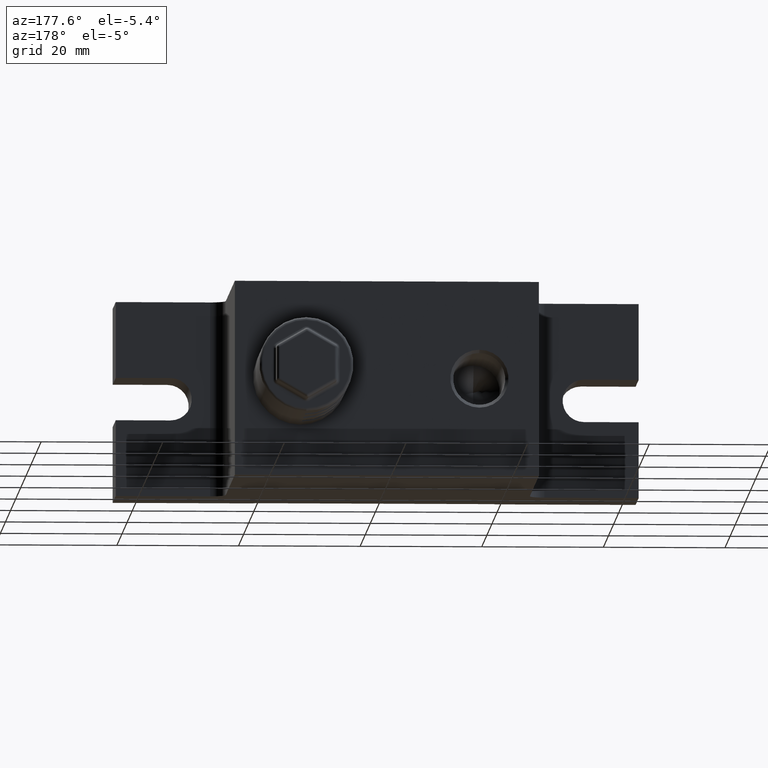
[diagram: clean part render]
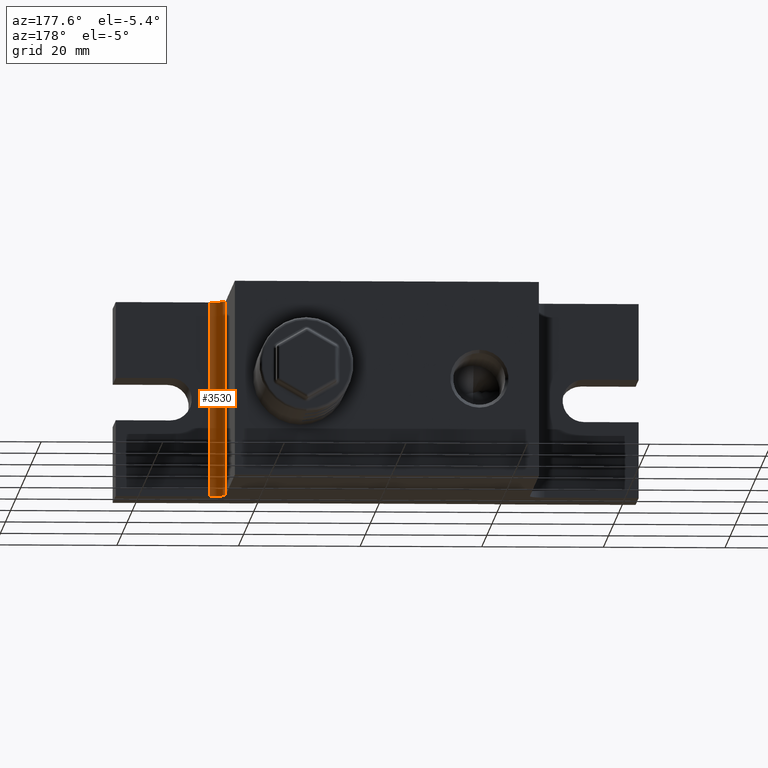
[diagram: same view with one face highlighted and labeled with its STEP entity id]
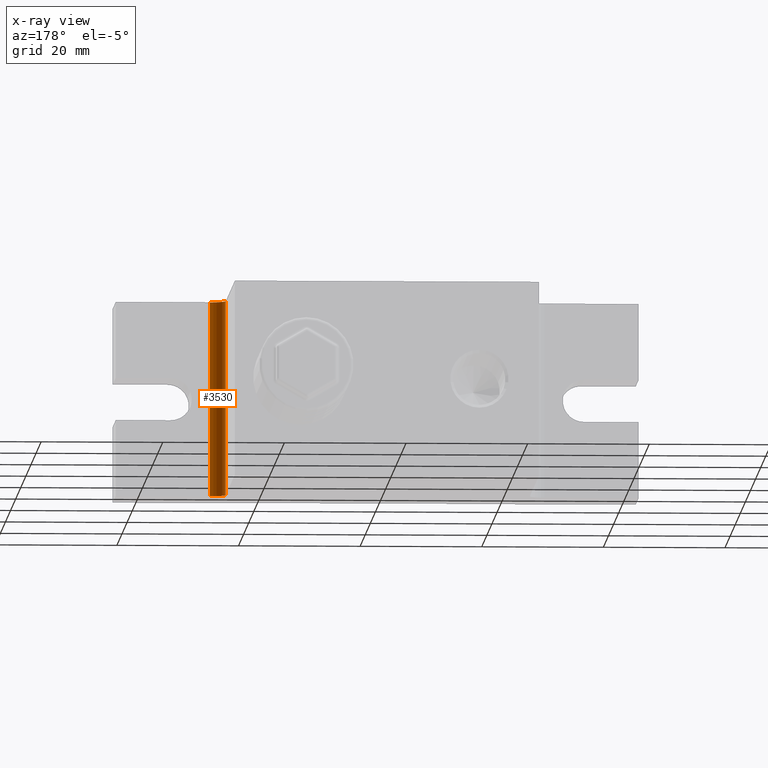
[diagram: x-ray of the same camera — body ghosted, the highlighted face saturated]
A machine part, auxiliary view. The second image highlights one B-rep face of the part: STEP entity #3530.
The next image is the same camera in x-ray: the body ghosted, the highlighted face saturated — about 0% of this face is hidden behind the body in this view.
In plain terms, the highlighted cylindrical surface (edge-blend (fillet) strip) has radius 2.5 mm, axis along (0, 0, -1).
Its self-contained STEP definition (entity closure, byte-faithful):
#348 = DIRECTION ( 'NONE',  ( -1.000000000000000000, 0.0000000000000000000, 0.0000000000000000000 ) ) ;
#484 = VERTEX_POINT ( 'NONE', #9081 ) ;
#831 = EDGE_CURVE ( 'NONE', #484, #8754, #4754, .T. ) ;
#861 = AXIS2_PLACEMENT_3D ( 'NONE', #9087, #5394, #5297 ) ;
#1019 = AXIS2_PLACEMENT_3D ( 'NONE', #8607, #7095, #348 ) ;
#1839 = ORIENTED_EDGE ( 'NONE', *, *, #6442, .F. ) ;
#2628 = CYLINDRICAL_SURFACE ( 'NONE', #8801, 2.499999999999998700 ) ;
#3023 = VECTOR ( 'NONE', #3173, 1000.000000000000000 ) ;
#3173 = DIRECTION ( 'NONE',  ( -0.0000000000000000000, -0.0000000000000000000, -1.000000000000000000 ) ) ;
#3530 = ADVANCED_FACE ( 'NONE', ( #5068 ), #2628, .F. ) ;
#4336 = CIRCLE ( 'NONE', #861, 2.499999999999998700 ) ;
#4391 = VERTEX_POINT ( 'NONE', #6137 ) ;
#4440 = ORIENTED_EDGE ( 'NONE', *, *, #5974, .F. ) ;
#4754 = LINE ( 'NONE', #7662, #3023 ) ;
#5068 = FACE_OUTER_BOUND ( 'NONE', #5549, .T. ) ;
#5081 = VERTEX_POINT ( 'NONE', #9633 ) ;
#5297 = DIRECTION ( 'NONE',  ( -1.000000000000000000, 0.0000000000000000000, 0.0000000000000000000 ) ) ;
#5309 = ORIENTED_EDGE ( 'NONE', *, *, #5628, .F. ) ;
#5394 = DIRECTION ( 'NONE',  ( 0.0000000000000000000, 0.0000000000000000000, -1.000000000000000000 ) ) ;
#5546 = LINE ( 'NONE', #7149, #9334 ) ;
#5549 = EDGE_LOOP ( 'NONE', ( #5309, #5888, #1839, #4440 ) ) ;
#5571 = DIRECTION ( 'NONE',  ( 0.0000000000000000000, 0.0000000000000000000, 1.000000000000000000 ) ) ;
#5628 = EDGE_CURVE ( 'NONE', #8754, #5081, #8742, .T. ) ;
#5888 = ORIENTED_EDGE ( 'NONE', *, *, #831, .F. ) ;
#5974 = EDGE_CURVE ( 'NONE', #5081, #4391, #5546, .T. ) ;
#6021 = CARTESIAN_POINT ( 'NONE',  ( 27.50000000000001400, -10.50000000000000400, -16.00000000000000000 ) ) ;
#6137 = CARTESIAN_POINT ( 'NONE',  ( 27.50000000000001400, -13.00000000000000500, 16.00000000000000000 ) ) ;
#6442 = EDGE_CURVE ( 'NONE', #4391, #484, #4336, .T. ) ;
#7095 = DIRECTION ( 'NONE',  ( -0.0000000000000000000, -0.0000000000000000000, 1.000000000000000000 ) ) ;
#7149 = CARTESIAN_POINT ( 'NONE',  ( 27.50000000000001400, -13.00000000000000500, 16.00000000000000000 ) ) ;
#7662 = CARTESIAN_POINT ( 'NONE',  ( 25.00000000000001400, -10.50000000000000400, -16.00000000000000000 ) ) ;
#7867 = CARTESIAN_POINT ( 'NONE',  ( 25.00000000000001400, -10.50000000000000500, -16.00000000000000000 ) ) ;
#8215 = DIRECTION ( 'NONE',  ( 0.0000000000000000000, 0.0000000000000000000, -1.000000000000000000 ) ) ;
#8247 = DIRECTION ( 'NONE',  ( -1.000000000000000000, 0.0000000000000000000, 0.0000000000000000000 ) ) ;
#8607 = CARTESIAN_POINT ( 'NONE',  ( 27.50000000000001400, -10.50000000000000400, -16.00000000000000000 ) ) ;
#8742 = CIRCLE ( 'NONE', #1019, 2.499999999999998700 ) ;
#8754 = VERTEX_POINT ( 'NONE', #7867 ) ;
#8801 = AXIS2_PLACEMENT_3D ( 'NONE', #6021, #8215, #8247 ) ;
#9081 = CARTESIAN_POINT ( 'NONE',  ( 25.00000000000001400, -10.50000000000000500, 16.00000000000000000 ) ) ;
#9087 = CARTESIAN_POINT ( 'NONE',  ( 27.50000000000001400, -10.50000000000000400, 16.00000000000000000 ) ) ;
#9334 = VECTOR ( 'NONE', #5571, 1000.000000000000000 ) ;
#9633 = CARTESIAN_POINT ( 'NONE',  ( 27.50000000000001400, -13.00000000000000500, -16.00000000000000000 ) ) ;